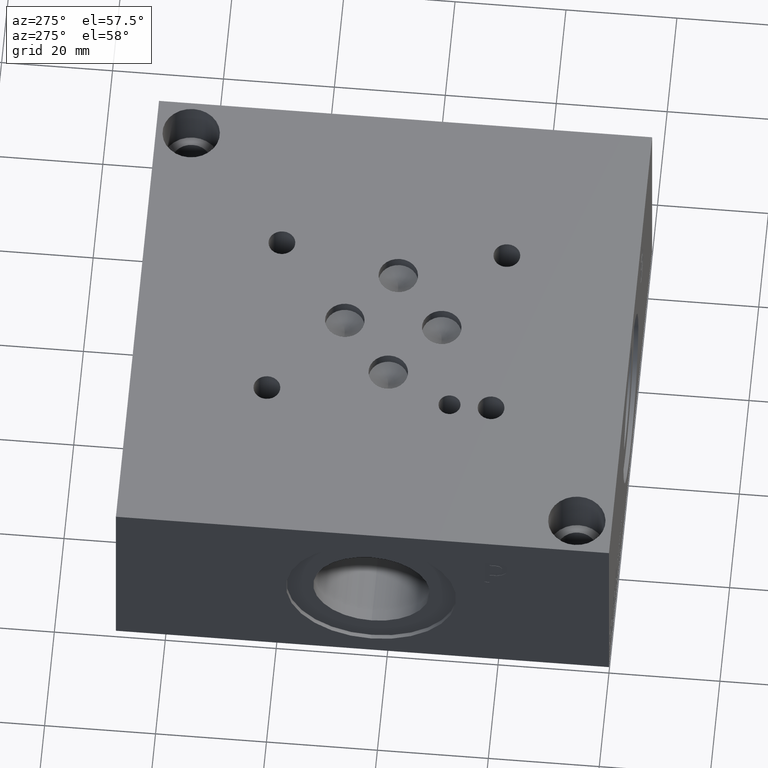
[diagram: clean part render]
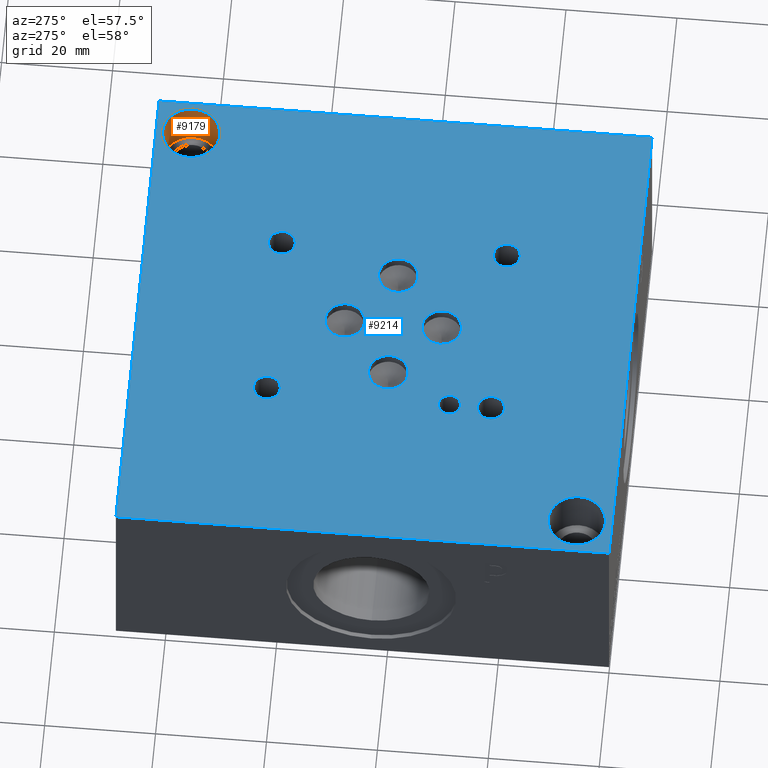
[diagram: same view with the hole feature highlighted: cylindrical wall and planar end face, labeled with their STEP entity ids]
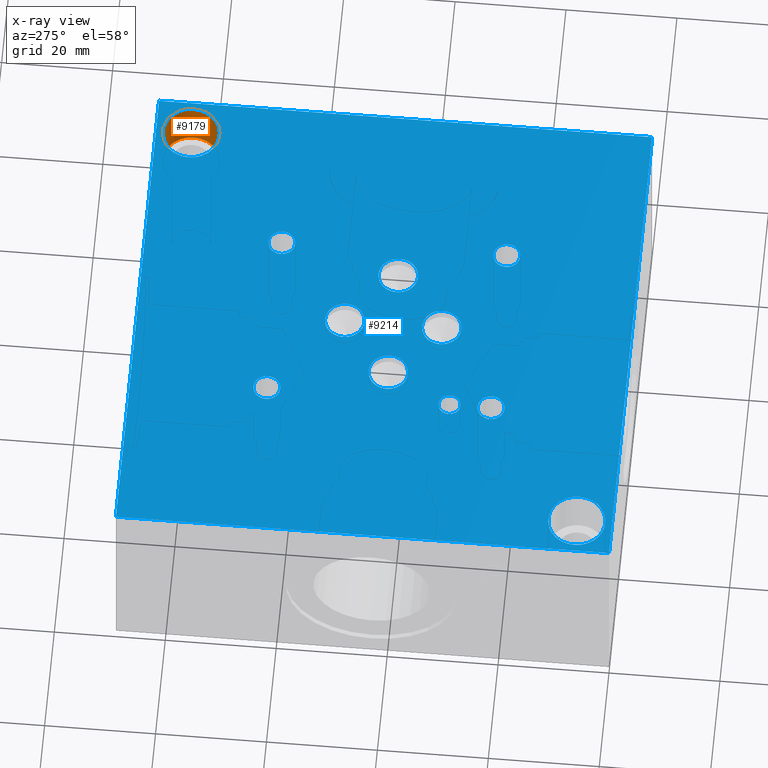
[diagram: x-ray of the same camera — body ghosted, the hole faces saturated]
A machine part, auxiliary view. The highlighted faces form one hole feature of diameter 10.3124 mm: the cylindrical wall (entity #9179, orange) and its adjacent planar end face (entity #9214, blue) — they share a circular edge in the B-rep.
The next image is the same camera in x-ray (body ghosted, the hole faces saturated) — the bore reads through the body.
Wall:
#30=CYLINDRICAL_SURFACE('',#9584,5.1562);
#126=CIRCLE('',#9581,5.1562);
#127=CIRCLE('',#9582,5.1562);
#129=CIRCLE('',#9585,5.1562);
#130=CIRCLE('',#9586,5.1562);
#960=FACE_OUTER_BOUND('',#1475,.T.);
#1475=EDGE_LOOP('',(#8013,#8014,#8015,#8016,#8017,#8018));
#2368=LINE('',#15709,#3232);
#3232=VECTOR('',#11230,5.1562);
#4342=VERTEX_POINT('',#15698);
#4343=VERTEX_POINT('',#15699);
#4345=VERTEX_POINT('',#15705);
#4346=VERTEX_POINT('',#15706);
#5593=EDGE_CURVE('',#4342,#4343,#126,.T.);
#5594=EDGE_CURVE('',#4343,#4342,#127,.T.);
#5596=EDGE_CURVE('',#4345,#4346,#129,.T.);
#5597=EDGE_CURVE('',#4346,#4345,#130,.T.);
#5598=EDGE_CURVE('',#4346,#4343,#2368,.T.);
#8013=ORIENTED_EDGE('',*,*,#5596,.F.);
#8014=ORIENTED_EDGE('',*,*,#5597,.F.);
#8015=ORIENTED_EDGE('',*,*,#5598,.T.);
#8016=ORIENTED_EDGE('',*,*,#5593,.F.);
#8017=ORIENTED_EDGE('',*,*,#5594,.F.);
#8018=ORIENTED_EDGE('',*,*,#5598,.F.);
#9179=ADVANCED_FACE('',(#960),#30,.F.);
#9581=AXIS2_PLACEMENT_3D('',#15700,#11218,#11219);
#9582=AXIS2_PLACEMENT_3D('',#15701,#11220,#11221);
#9584=AXIS2_PLACEMENT_3D('',#15704,#11224,#11225);
#9585=AXIS2_PLACEMENT_3D('',#15707,#11226,#11227);
#9586=AXIS2_PLACEMENT_3D('',#15708,#11228,#11229);
#11218=DIRECTION('center_axis',(0.,0.,1.));
#11219=DIRECTION('ref_axis',(1.,0.,0.));
#11220=DIRECTION('center_axis',(0.,0.,1.));
#11221=DIRECTION('ref_axis',(1.,0.,0.));
#11224=DIRECTION('center_axis',(0.,0.,1.));
#11225=DIRECTION('ref_axis',(1.,0.,0.));
#11226=DIRECTION('center_axis',(0.,0.,-1.));
#11227=DIRECTION('ref_axis',(1.,0.,0.));
#11228=DIRECTION('center_axis',(0.,0.,-1.));
#11229=DIRECTION('ref_axis',(1.,0.,0.));
#11230=DIRECTION('',(0.,0.,-1.));
#15698=CARTESIAN_POINT('',(87.7062,82.55,28.575));
#15699=CARTESIAN_POINT('',(77.3938,82.55,28.575));
#15700=CARTESIAN_POINT('Origin',(82.55,82.55,28.575));
#15701=CARTESIAN_POINT('Origin',(82.55,82.55,28.575));
#15704=CARTESIAN_POINT('Origin',(82.55,82.55,33.3375));
#15705=CARTESIAN_POINT('',(87.7062,82.55,38.1));
#15706=CARTESIAN_POINT('',(77.3938,82.55,38.1));
#15707=CARTESIAN_POINT('Origin',(82.55,82.55,38.1));
#15708=CARTESIAN_POINT('Origin',(82.55,82.55,38.1));
#15709=CARTESIAN_POINT('',(77.3938,82.55,33.3375));
End face:
#129=CIRCLE('',#9585,5.1562);
#130=CIRCLE('',#9586,5.1562);
#135=CIRCLE('',#9594,5.1562);
#136=CIRCLE('',#9595,5.1562);
#140=CIRCLE('',#9602,3.556);
#141=CIRCLE('',#9603,3.556);
#144=CIRCLE('',#9608,3.556);
#145=CIRCLE('',#9609,3.556);
#148=CIRCLE('',#9614,3.556);
#149=CIRCLE('',#9615,3.556);
#152=CIRCLE('',#9620,3.556);
#153=CIRCLE('',#9621,3.556);
#156=CIRCLE('',#9626,1.9812);
#157=CIRCLE('',#9627,1.9812);
#163=CIRCLE('',#9636,2.413);
#164=CIRCLE('',#9637,2.413);
#170=CIRCLE('',#9647,2.413);
#171=CIRCLE('',#9648,2.413);
#177=CIRCLE('',#9658,2.413);
#178=CIRCLE('',#9659,2.413);
#184=CIRCLE('',#9669,2.413);
#185=CIRCLE('',#9670,2.413);
#240=FACE_BOUND('',#1518,.T.);
#241=FACE_BOUND('',#1519,.T.);
#242=FACE_BOUND('',#1520,.T.);
#243=FACE_BOUND('',#1521,.T.);
#244=FACE_BOUND('',#1522,.T.);
#245=FACE_BOUND('',#1523,.T.);
#246=FACE_BOUND('',#1524,.T.);
#247=FACE_BOUND('',#1525,.T.);
#248=FACE_BOUND('',#1526,.T.);
#249=FACE_BOUND('',#1527,.T.);
#250=FACE_BOUND('',#1528,.T.);
#527=PLANE('',#9676);
#995=FACE_OUTER_BOUND('',#1517,.T.);
#1517=EDGE_LOOP('',(#8189,#8190,#8191,#8192));
#1518=EDGE_LOOP('',(#8193,#8194));
#1519=EDGE_LOOP('',(#8195,#8196));
#1520=EDGE_LOOP('',(#8197,#8198));
#1521=EDGE_LOOP('',(#8199,#8200));
#1522=EDGE_LOOP('',(#8201,#8202));
#1523=EDGE_LOOP('',(#8203,#8204));
#1524=EDGE_LOOP('',(#8205,#8206));
#1525=EDGE_LOOP('',(#8207,#8208));
#1526=EDGE_LOOP('',(#8209,#8210));
#1527=EDGE_LOOP('',(#8211,#8212));
#1528=EDGE_LOOP('',(#8213,#8214));
#1826=LINE('',#13945,#2690);
#2306=LINE('',#15442,#3170);
#2342=LINE('',#15519,#3206);
#2395=LINE('',#15888,#3259);
#2690=VECTOR('',#10114,10.);
#3170=VECTOR('',#10944,10.);
#3206=VECTOR('',#11010,10.);
#3259=VECTOR('',#11433,10.);
#3890=VERTEX_POINT('',#13942);
#3891=VERTEX_POINT('',#13944);
#4253=VERTEX_POINT('',#15441);
#4279=VERTEX_POINT('',#15518);
#4345=VERTEX_POINT('',#15705);
#4346=VERTEX_POINT('',#15706);
#4351=VERTEX_POINT('',#15722);
#4352=VERTEX_POINT('',#15723);
#4357=VERTEX_POINT('',#15739);
#4358=VERTEX_POINT('',#15740);
#4362=VERTEX_POINT('',#15752);
#4363=VERTEX_POINT('',#15753);
#4367=VERTEX_POINT('',#15765);
#4368=VERTEX_POINT('',#15766);
#4372=VERTEX_POINT('',#15778);
#4373=VERTEX_POINT('',#15779);
#4377=VERTEX_POINT('',#15791);
#4378=VERTEX_POINT('',#15792);
#4385=VERTEX_POINT('',#15811);
#4386=VERTEX_POINT('',#15812);
#4393=VERTEX_POINT('',#15833);
#4394=VERTEX_POINT('',#15834);
#4401=VERTEX_POINT('',#15855);
#4402=VERTEX_POINT('',#15856);
#4409=VERTEX_POINT('',#15877);
#4410=VERTEX_POINT('',#15878);
#4929=EDGE_CURVE('',#3891,#3890,#1826,.T.);
#5471=EDGE_CURVE('',#4253,#3891,#2306,.T.);
#5509=EDGE_CURVE('',#4279,#4253,#2342,.T.);
#5596=EDGE_CURVE('',#4345,#4346,#129,.T.);
#5597=EDGE_CURVE('',#4346,#4345,#130,.T.);
#5604=EDGE_CURVE('',#4351,#4352,#135,.T.);
#5605=EDGE_CURVE('',#4352,#4351,#136,.T.);
#5612=EDGE_CURVE('',#4357,#4358,#140,.T.);
#5613=EDGE_CURVE('',#4358,#4357,#141,.T.);
#5618=EDGE_CURVE('',#4362,#4363,#144,.T.);
#5619=EDGE_CURVE('',#4363,#4362,#145,.T.);
#5624=EDGE_CURVE('',#4367,#4368,#148,.T.);
#5625=EDGE_CURVE('',#4368,#4367,#149,.T.);
#5630=EDGE_CURVE('',#4372,#4373,#152,.T.);
#5631=EDGE_CURVE('',#4373,#4372,#153,.T.);
#5636=EDGE_CURVE('',#4377,#4378,#156,.T.);
#5637=EDGE_CURVE('',#4378,#4377,#157,.T.);
#5645=EDGE_CURVE('',#4385,#4386,#163,.T.);
#5646=EDGE_CURVE('',#4386,#4385,#164,.T.);
#5655=EDGE_CURVE('',#4393,#4394,#170,.T.);
#5656=EDGE_CURVE('',#4394,#4393,#171,.T.);
#5665=EDGE_CURVE('',#4401,#4402,#177,.T.);
#5666=EDGE_CURVE('',#4402,#4401,#178,.T.);
#5675=EDGE_CURVE('',#4409,#4410,#184,.T.);
#5676=EDGE_CURVE('',#4410,#4409,#185,.T.);
#5680=EDGE_CURVE('',#3890,#4279,#2395,.T.);
#8189=ORIENTED_EDGE('',*,*,#4929,.T.);
#8190=ORIENTED_EDGE('',*,*,#5680,.T.);
#8191=ORIENTED_EDGE('',*,*,#5509,.T.);
#8192=ORIENTED_EDGE('',*,*,#5471,.T.);
#8193=ORIENTED_EDGE('',*,*,#5596,.T.);
#8194=ORIENTED_EDGE('',*,*,#5597,.T.);
#8195=ORIENTED_EDGE('',*,*,#5604,.T.);
#8196=ORIENTED_EDGE('',*,*,#5605,.T.);
#8197=ORIENTED_EDGE('',*,*,#5612,.T.);
#8198=ORIENTED_EDGE('',*,*,#5613,.T.);
#8199=ORIENTED_EDGE('',*,*,#5618,.T.);
#8200=ORIENTED_EDGE('',*,*,#5619,.T.);
#8201=ORIENTED_EDGE('',*,*,#5624,.T.);
#8202=ORIENTED_EDGE('',*,*,#5625,.T.);
#8203=ORIENTED_EDGE('',*,*,#5630,.T.);
#8204=ORIENTED_EDGE('',*,*,#5631,.T.);
#8205=ORIENTED_EDGE('',*,*,#5636,.T.);
#8206=ORIENTED_EDGE('',*,*,#5637,.T.);
#8207=ORIENTED_EDGE('',*,*,#5645,.T.);
#8208=ORIENTED_EDGE('',*,*,#5646,.T.);
#8209=ORIENTED_EDGE('',*,*,#5655,.T.);
#8210=ORIENTED_EDGE('',*,*,#5656,.T.);
#8211=ORIENTED_EDGE('',*,*,#5665,.T.);
#8212=ORIENTED_EDGE('',*,*,#5666,.T.);
#8213=ORIENTED_EDGE('',*,*,#5675,.T.);
#8214=ORIENTED_EDGE('',*,*,#5676,.T.);
#9214=ADVANCED_FACE('',(#995,#240,#241,#242,#243,#244,#245,#246,#247,#248,
#249,#250),#527,.T.);
#9585=AXIS2_PLACEMENT_3D('',#15707,#11226,#11227);
#9586=AXIS2_PLACEMENT_3D('',#15708,#11228,#11229);
#9594=AXIS2_PLACEMENT_3D('',#15724,#11246,#11247);
#9595=AXIS2_PLACEMENT_3D('',#15725,#11248,#11249);
#9602=AXIS2_PLACEMENT_3D('',#15741,#11265,#11266);
#9603=AXIS2_PLACEMENT_3D('',#15742,#11267,#11268);
#9608=AXIS2_PLACEMENT_3D('',#15754,#11279,#11280);
#9609=AXIS2_PLACEMENT_3D('',#15755,#11281,#11282);
#9614=AXIS2_PLACEMENT_3D('',#15767,#11293,#11294);
#9615=AXIS2_PLACEMENT_3D('',#15768,#11295,#11296);
#9620=AXIS2_PLACEMENT_3D('',#15780,#11307,#11308);
#9621=AXIS2_PLACEMENT_3D('',#15781,#11309,#11310);
#9626=AXIS2_PLACEMENT_3D('',#15793,#11321,#11322);
#9627=AXIS2_PLACEMENT_3D('',#15794,#11323,#11324);
#9636=AXIS2_PLACEMENT_3D('',#15813,#11343,#11344);
#9637=AXIS2_PLACEMENT_3D('',#15814,#11345,#11346);
#9647=AXIS2_PLACEMENT_3D('',#15835,#11368,#11369);
#9648=AXIS2_PLACEMENT_3D('',#15836,#11370,#11371);
#9658=AXIS2_PLACEMENT_3D('',#15857,#11393,#11394);
#9659=AXIS2_PLACEMENT_3D('',#15858,#11395,#11396);
#9669=AXIS2_PLACEMENT_3D('',#15879,#11418,#11419);
#9670=AXIS2_PLACEMENT_3D('',#15880,#11420,#11421);
#9676=AXIS2_PLACEMENT_3D('',#15890,#11436,#11437);
#10114=DIRECTION('',(1.,0.,0.));
#10944=DIRECTION('',(0.,-1.,0.));
#11010=DIRECTION('',(-1.,0.,0.));
#11226=DIRECTION('center_axis',(0.,0.,-1.));
#11227=DIRECTION('ref_axis',(1.,0.,0.));
#11228=DIRECTION('center_axis',(0.,0.,-1.));
#11229=DIRECTION('ref_axis',(1.,0.,0.));
#11246=DIRECTION('center_axis',(0.,0.,-1.));
#11247=DIRECTION('ref_axis',(1.,0.,0.));
#11248=DIRECTION('center_axis',(0.,0.,-1.));
#11249=DIRECTION('ref_axis',(1.,0.,0.));
#11265=DIRECTION('center_axis',(0.,0.,-1.));
#11266=DIRECTION('ref_axis',(1.,0.,0.));
#11267=DIRECTION('center_axis',(0.,0.,-1.));
#11268=DIRECTION('ref_axis',(1.,0.,0.));
#11279=DIRECTION('center_axis',(0.,0.,-1.));
#11280=DIRECTION('ref_axis',(1.,0.,0.));
#11281=DIRECTION('center_axis',(0.,0.,-1.));
#11282=DIRECTION('ref_axis',(1.,0.,0.));
#11293=DIRECTION('center_axis',(0.,0.,-1.));
#11294=DIRECTION('ref_axis',(1.,0.,0.));
#11295=DIRECTION('center_axis',(0.,0.,-1.));
#11296=DIRECTION('ref_axis',(1.,0.,0.));
#11307=DIRECTION('center_axis',(0.,0.,-1.));
#11308=DIRECTION('ref_axis',(1.,0.,0.));
#11309=DIRECTION('center_axis',(0.,0.,-1.));
#11310=DIRECTION('ref_axis',(1.,0.,0.));
#11321=DIRECTION('center_axis',(0.,0.,-1.));
#11322=DIRECTION('ref_axis',(1.,0.,0.));
#11323=DIRECTION('center_axis',(0.,0.,-1.));
#11324=DIRECTION('ref_axis',(1.,0.,0.));
#11343=DIRECTION('center_axis',(0.,0.,-1.));
#11344=DIRECTION('ref_axis',(1.,0.,0.));
#11345=DIRECTION('center_axis',(0.,0.,-1.));
#11346=DIRECTION('ref_axis',(1.,0.,0.));
#11368=DIRECTION('center_axis',(0.,0.,-1.));
#11369=DIRECTION('ref_axis',(1.,0.,0.));
#11370=DIRECTION('center_axis',(0.,0.,-1.));
#11371=DIRECTION('ref_axis',(1.,0.,0.));
#11393=DIRECTION('center_axis',(0.,0.,-1.));
#11394=DIRECTION('ref_axis',(1.,0.,0.));
#11395=DIRECTION('center_axis',(0.,0.,-1.));
#11396=DIRECTION('ref_axis',(1.,0.,0.));
#11418=DIRECTION('center_axis',(0.,0.,-1.));
#11419=DIRECTION('ref_axis',(1.,0.,0.));
#11420=DIRECTION('center_axis',(0.,0.,-1.));
#11421=DIRECTION('ref_axis',(1.,0.,0.));
#11433=DIRECTION('',(0.,1.,0.));
#11436=DIRECTION('center_axis',(0.,0.,1.));
#11437=DIRECTION('ref_axis',(1.,0.,0.));
#13942=CARTESIAN_POINT('',(88.9,0.,38.1));
#13944=CARTESIAN_POINT('',(0.,0.,38.1));
#13945=CARTESIAN_POINT('',(0.,0.,38.1));
#15441=CARTESIAN_POINT('',(0.,88.9,38.1));
#15442=CARTESIAN_POINT('',(0.,88.9,38.1));
#15518=CARTESIAN_POINT('',(88.9,88.9,38.1));
#15519=CARTESIAN_POINT('',(88.9,88.9,38.1));
#15705=CARTESIAN_POINT('',(87.7062,82.55,38.1));
#15706=CARTESIAN_POINT('',(77.3938,82.55,38.1));
#15707=CARTESIAN_POINT('Origin',(82.55,82.55,38.1));
#15708=CARTESIAN_POINT('Origin',(82.55,82.55,38.1));
#15722=CARTESIAN_POINT('',(11.5062,6.35,38.1));
#15723=CARTESIAN_POINT('',(1.1938,6.35,38.1));
#15724=CARTESIAN_POINT('Origin',(6.35,6.35,38.1));
#15725=CARTESIAN_POINT('Origin',(6.35,6.35,38.1));
#15739=CARTESIAN_POINT('',(48.7934,51.5874,38.1));
#15740=CARTESIAN_POINT('',(41.6814,51.5874,38.1));
#15741=CARTESIAN_POINT('Origin',(45.2374,51.5874,38.1));
#15742=CARTESIAN_POINT('Origin',(45.2374,51.5874,38.1));
#15752=CARTESIAN_POINT('',(38.481,42.8498,38.1));
#15753=CARTESIAN_POINT('',(31.369,42.8498,38.1));
#15754=CARTESIAN_POINT('Origin',(34.925,42.8498,38.1));
#15755=CARTESIAN_POINT('Origin',(34.925,42.8498,38.1));
#15765=CARTESIAN_POINT('',(59.1312,42.8498,38.1));
#15766=CARTESIAN_POINT('',(52.0192,42.8498,38.1));
#15767=CARTESIAN_POINT('Origin',(55.5752,42.8498,38.1));
#15768=CARTESIAN_POINT('Origin',(55.5752,42.8498,38.1));
#15778=CARTESIAN_POINT('',(48.7934,34.1122,38.1));
#15779=CARTESIAN_POINT('',(41.6814,34.1122,38.1));
#15780=CARTESIAN_POINT('Origin',(45.2374,34.1122,38.1));
#15781=CARTESIAN_POINT('Origin',(45.2374,34.1122,38.1));
#15791=CARTESIAN_POINT('',(30.9626,31.2928,38.1));
#15792=CARTESIAN_POINT('',(27.0002,31.2928,38.1));
#15793=CARTESIAN_POINT('Origin',(28.9814,31.2928,38.1));
#15794=CARTESIAN_POINT('Origin',(28.9814,31.2928,38.1));
#15811=CARTESIAN_POINT('',(63.9318,23.7998,38.1));
#15812=CARTESIAN_POINT('',(59.1058,23.7998,38.1));
#15813=CARTESIAN_POINT('Origin',(61.5188,23.7998,38.1));
#15814=CARTESIAN_POINT('Origin',(61.5188,23.7998,38.1));
#15833=CARTESIAN_POINT('',(32.1818,64.2874,38.1));
#15834=CARTESIAN_POINT('',(27.3558,64.2874,38.1));
#15835=CARTESIAN_POINT('Origin',(29.7688,64.2874,38.1));
#15836=CARTESIAN_POINT('Origin',(29.7688,64.2874,38.1));
#15855=CARTESIAN_POINT('',(63.1444,64.2874,38.1));
#15856=CARTESIAN_POINT('',(58.3184,64.2874,38.1));
#15857=CARTESIAN_POINT('Origin',(60.7314,64.2874,38.1));
#15858=CARTESIAN_POINT('Origin',(60.7314,64.2874,38.1));
#15877=CARTESIAN_POINT('',(31.3944,23.7998,38.1));
#15878=CARTESIAN_POINT('',(26.5684,23.7998,38.1));
#15879=CARTESIAN_POINT('Origin',(28.9814,23.7998,38.1));
#15880=CARTESIAN_POINT('Origin',(28.9814,23.7998,38.1));
#15888=CARTESIAN_POINT('',(88.9,0.,38.1));
#15890=CARTESIAN_POINT('Origin',(44.45,44.45,38.1));